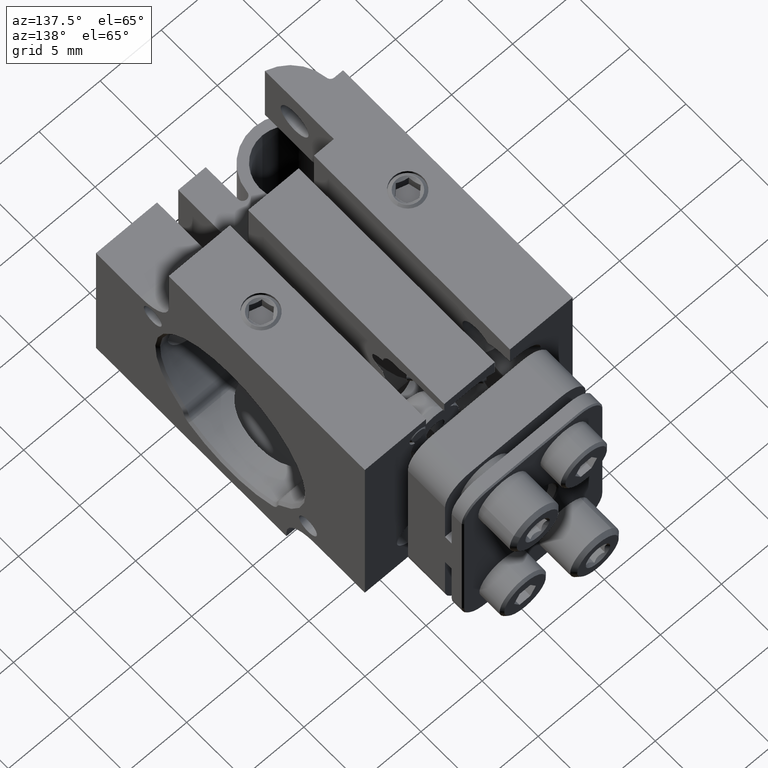
[diagram: clean part render]
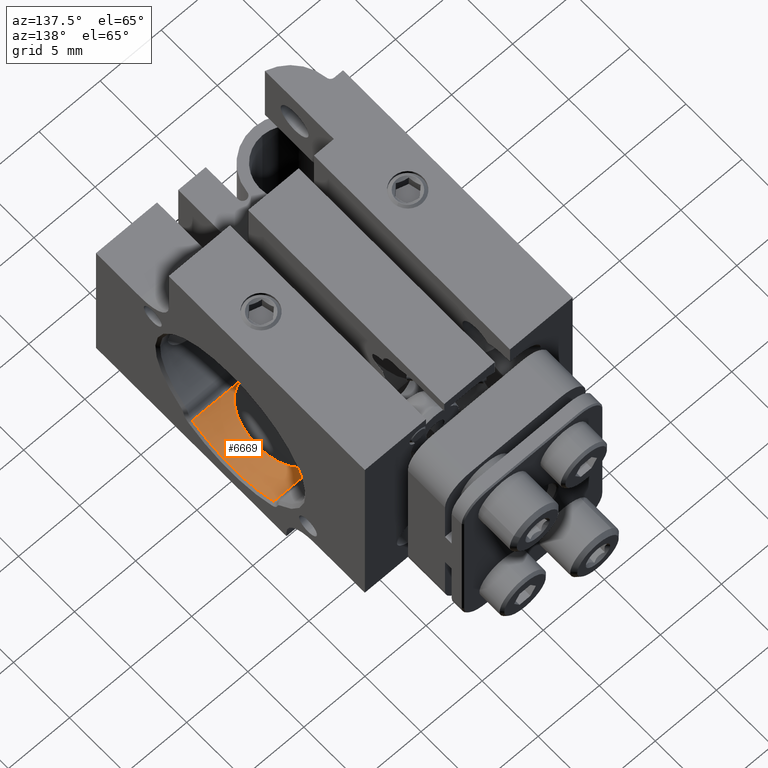
[diagram: same view with one face highlighted and labeled with its STEP entity id]
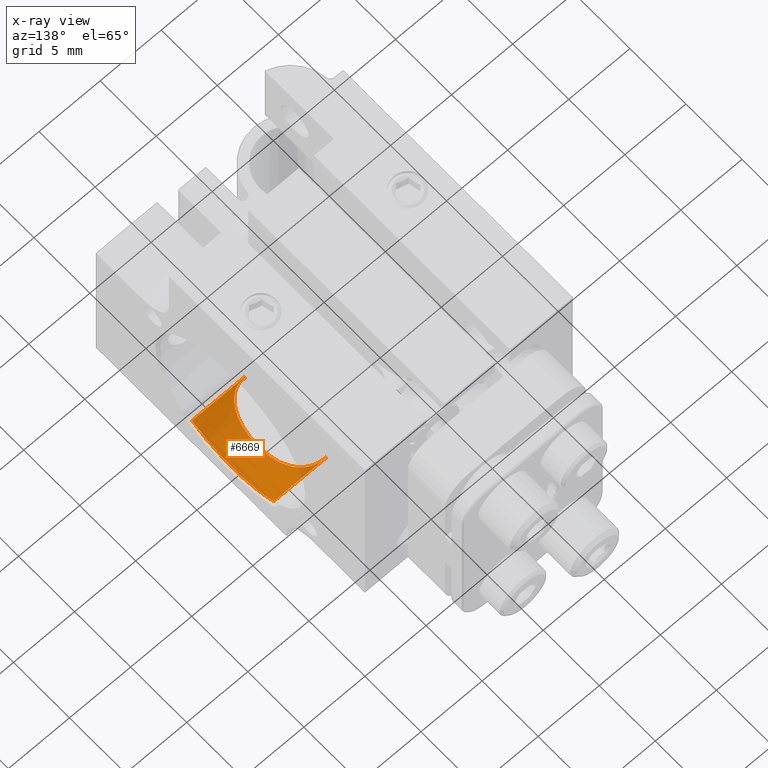
[diagram: x-ray of the same camera — body ghosted, the highlighted face saturated]
A machine part, auxiliary view. The second image highlights one B-rep face of the part: STEP entity #6669.
The next image is the same camera in x-ray: the body ghosted, the highlighted face saturated — about 3% of this face is hidden behind the body in this view.
In plain terms, the highlighted cylindrical surface (partial cylindrical patch) has radius 7 mm, axis along (1, 0, 0).
Its self-contained STEP definition (entity closure, byte-faithful):
#293 = LINE ( 'NONE', #10823, #7686 ) ;
#296 = AXIS2_PLACEMENT_3D ( 'NONE', #6284, #9837, #4664 ) ;
#485 = CARTESIAN_POINT ( 'NONE',  ( 4.298864619517659413, 14.96333366176993884, 14.68764634029930605 ) ) ;
#543 = CARTESIAN_POINT ( 'NONE',  ( 6.168995432464522644, 12.13565653771196473, 13.72825625527658744 ) ) ;
#583 = CARTESIAN_POINT ( 'NONE',  ( 4.066265259046022429, 14.95886073138530392, 14.68495176566820071 ) ) ;
#590 = CARTESIAN_POINT ( 'NONE',  ( 4.200000000000000178, 7.752231110841958817, 14.68764634029930782 ) ) ;
#1099 = CARTESIAN_POINT ( 'NONE',  ( 4.000000000000000000, 14.99778238630594451, 14.70848251916177496 ) ) ;
#1344 = CARTESIAN_POINT ( 'NONE',  ( 4.593877852237489456, 7.792295978382683508, 14.66317024353241827 ) ) ;
#1398 = CARTESIAN_POINT ( 'NONE',  ( 5.701758326551651379, 13.96702572738242942, 14.18990059736128018 ) ) ;
#1454 = CARTESIAN_POINT ( 'NONE',  ( 4.396026887998080390, 7.752231110841962369, 14.68764634029931315 ) ) ;
#1502 = CARTESIAN_POINT ( 'NONE',  ( 5.179822571736103498, 8.105043646061282914, 14.48888982728052355 ) ) ;
#1637 = CARTESIAN_POINT ( 'NONE',  ( 8.299999999999995381, 7.717782386305946929, 14.70848251916177496 ) ) ;
#1670 = CARTESIAN_POINT ( 'NONE',  ( 4.000000000000000000, 7.717782386305946929, 14.70848251916177496 ) ) ;
#1816 = DIRECTION ( 'NONE',  ( 0.000000000000000000, 0.000000000000000000, 1.000000000000000000 ) ) ;
#1918 = ORIENTED_EDGE ( 'NONE', *, *, #9743, .T. ) ;
#2096 = ORIENTED_EDGE ( 'NONE', *, *, #4969, .F. ) ;
#2310 = CARTESIAN_POINT ( 'NONE',  ( 5.105940582391193416, 8.048043356943477278, 14.51925825523877833 ) ) ;
#2316 = VERTEX_POINT ( 'NONE', #7781 ) ;
#2359 = CARTESIAN_POINT ( 'NONE',  ( 8.299999999999995381, 14.99778238630594451, 14.70848251916177496 ) ) ;
#2374 = CARTESIAN_POINT ( 'NONE',  ( 5.782571854024620706, 13.80055432041646313, 14.12509433830392780 ) ) ;
#2481 = EDGE_CURVE ( 'NONE', #2316, #8775, #8314, .T. ) ;
#2640 = EDGE_CURVE ( 'NONE', #7076, #9688, #4854, .T. ) ;
#3121 = CARTESIAN_POINT ( 'NONE',  ( 6.194044146681343399, 11.74612611647784810, 13.69569470301130920 ) ) ;
#3280 = CARTESIAN_POINT ( 'NONE',  ( 4.000000000000000000, 14.94996580323807400, 14.67963349917473437 ) ) ;
#3333 = AXIS2_PLACEMENT_3D ( 'NONE', #9707, #5387, #1816 ) ;
#3352 = EDGE_CURVE ( 'NONE', #2316, #6843, #4559, .T. ) ;
#3472 = DIRECTION ( 'NONE',  ( 0.000000000000000000, 0.000000000000000000, 1.000000000000000000 ) ) ;
#3874 = CARTESIAN_POINT ( 'NONE',  ( 5.386750372428732447, 8.291802764761243338, 14.39325713719170530 ) ) ;
#3884 = CARTESIAN_POINT ( 'NONE',  ( 4.000000000000000000, 7.765598969373820104, 14.67963349917473082 ) ) ;
#3933 = FACE_OUTER_BOUND ( 'NONE', #8284, .T. ) ;
#3935 = CARTESIAN_POINT ( 'NONE',  ( 4.860582799859425762, 7.901097385886569846, 14.60052220822544555 ) ) ;
#3993 = CARTESIAN_POINT ( 'NONE',  ( 6.169069043045330325, 10.58097876817601879, 13.72816086493054755 ) ) ;
#3999 = VERTEX_POINT ( 'NONE', #1637 ) ;
#4004 = CARTESIAN_POINT ( 'NONE',  ( 4.133523117355340837, 7.752231110841957928, 14.68764634029930782 ) ) ;
#4043 = CARTESIAN_POINT ( 'NONE',  ( 6.149783441593153377, 12.33100705593064461, 13.75292543589582372 ) ) ;
#4235 = CARTESIAN_POINT ( 'NONE',  ( 4.200000000000000178, 7.752231110841958817, 14.68764634029930782 ) ) ;
#4251 = CARTESIAN_POINT ( 'NONE',  ( 4.199999999999991296, 14.96333366176994595, 14.68764634029930960 ) ) ;
#4391 = CARTESIAN_POINT ( 'NONE',  ( 4.000000000000000000, 11.35778238630594572, 20.68764634029930960 ) ) ;
#4511 = ORIENTED_EDGE ( 'NONE', *, *, #5153, .T. ) ;
#4559 = CIRCLE ( 'NONE', #10422, 7.000000000000002665 ) ;
#4664 = DIRECTION ( 'NONE',  ( 0.000000000000000000, 0.000000000000000000, 1.000000000000000000 ) ) ;
#4797 = DIRECTION ( 'NONE',  ( 1.000000000000000000, 0.000000000000000000, 0.000000000000000000 ) ) ;
#4799 = CARTESIAN_POINT ( 'NONE',  ( 6.069399160933615534, 9.810535012676931288, 13.84969898978983061 ) ) ;
#4854 = LINE ( 'NONE', #8380, #11033 ) ;
#4855 = CARTESIAN_POINT ( 'NONE',  ( 4.946410921822603335, 7.945984984601873968, 14.57511638126211118 ) ) ;
#4969 = EDGE_CURVE ( 'NONE', #9567, #8485, #11151, .T. ) ;
#5153 = EDGE_CURVE ( 'NONE', #6843, #3999, #293, .T. ) ;
#5197 = CIRCLE ( 'NONE', #3333, 7.000000000000002665 ) ;
#5347 = ORIENTED_EDGE ( 'NONE', *, *, #3352, .T. ) ;
#5387 = DIRECTION ( 'NONE',  ( -1.000000000000000000, -0.000000000000000000, -0.000000000000000000 ) ) ;
#5556 = CARTESIAN_POINT ( 'NONE',  ( 4.200000000000000178, 7.752231110841958817, 14.68764634029930782 ) ) ;
#5559 = AXIS2_PLACEMENT_3D ( 'NONE', #8219, #4797, #6606 ) ;
#5842 = CARTESIAN_POINT ( 'NONE',  ( 5.783199146134107238, 8.916409033542574747, 14.12457612955899755 ) ) ;
#5892 = CARTESIAN_POINT ( 'NONE',  ( 4.396082384887643357, 14.95366284936543622, 14.68180522437471858 ) ) ;
#6128 = ORIENTED_EDGE ( 'NONE', *, *, #6181, .T. ) ;
#6181 = EDGE_CURVE ( 'NONE', #9688, #8485, #5197, .T. ) ;
#6284 = CARTESIAN_POINT ( 'NONE',  ( 8.299999999999995381, 11.35778238630594572, 20.68764634029930960 ) ) ;
#6476 = B_SPLINE_CURVE_WITH_KNOTS ( 'NONE', 3,
 ( #590, #1454, #1344, #3935, #4855, #2310, #1502, #3874, #10196, #7402, #5842, #11014, #4799, #9399, #3993, #10088, #10255, #7625, #3121, #543, #4043, #9287, #6658, #2374, #1398, #10893, #8381, #8329, #6547, #9227, #8435, #5892, #485, #10953 ),
 .UNSPECIFIED., .F., .F.,
 ( 4, 2, 2, 2, 2, 2, 2, 2, 2, 2, 2, 2, 2, 2, 2, 2, 4 ),
 ( 0.0001992977081825666249, 0.0007869863597248973747, 0.001080830685496063414, 0.001374675011267229453, 0.001962363662809558495, 0.002550052314351886670, 0.003725429617436543453, 0.004313118268978869893, 0.004900806920521196333, 0.005488495572063522773, 0.006076184223605849213, 0.007251561526690502094, 0.007839250178232826799, 0.008426938829775153239, 0.009014627481317479679, 0.009308471807088642899, 0.009602316132859806119 ),
 .UNSPECIFIED. ) ;
#6547 = CARTESIAN_POINT ( 'NONE',  ( 4.949322931190773822, 14.77832382276854872, 14.57970810442976628 ) ) ;
#6606 = DIRECTION ( 'NONE',  ( 0.000000000000000000, 0.000000000000000000, 1.000000000000000000 ) ) ;
#6658 = CARTESIAN_POINT ( 'NONE',  ( 5.987068773621150086, 13.27549743229762136, 13.94529786174501851 ) ) ;
#6669 = ADVANCED_FACE ( 'NONE', ( #3933 ), #9172, .F. ) ;
#6843 = VERTEX_POINT ( 'NONE', #1670 ) ;
#6930 = CARTESIAN_POINT ( 'NONE',  ( 4.133485842862869575, 14.96333366176993529, 14.68764634029930782 ) ) ;
#7076 = VERTEX_POINT ( 'NONE', #2359 ) ;
#7402 = CARTESIAN_POINT ( 'NONE',  ( 5.701713778946432498, 8.748588318896947769, 14.18989964786519842 ) ) ;
#7625 = CARTESIAN_POINT ( 'NONE',  ( 6.200011123343066366, 11.55158144220680150, 13.68763150917553872 ) ) ;
#7651 = CIRCLE ( 'NONE', #296, 7.000000000000002665 ) ;
#7686 = VECTOR ( 'NONE', #8316, 1000.000000000000000 ) ;
#7781 = CARTESIAN_POINT ( 'NONE',  ( 4.000000000000000000, 7.765598969373820104, 14.67963349917473082 ) ) ;
#7878 = DIRECTION ( 'NONE',  ( -1.000000000000000000, -0.000000000000000000, -0.000000000000000000 ) ) ;
#8219 = CARTESIAN_POINT ( 'NONE',  ( -4.217137253221634019, 11.35778238630594572, 20.68764634029930960 ) ) ;
#8228 = ORIENTED_EDGE ( 'NONE', *, *, #11066, .F. ) ;
#8284 = EDGE_LOOP ( 'NONE', ( #4511, #1918, #10236, #6128, #2096, #8228, #11242, #5347 ) ) ;
#8314 = B_SPLINE_CURVE_WITH_KNOTS ( 'NONE', 3,
 ( #3884, #9929, #4004, #5556 ),
 .UNSPECIFIED., .F., .F.,
 ( 4, 4 ),
 ( 0.000000000000000000, 0.0001992977081825666249 ),
 .UNSPECIFIED. ) ;
#8316 = DIRECTION ( 'NONE',  ( 1.000000000000000000, 0.000000000000000000, 0.000000000000000000 ) ) ;
#8329 = CARTESIAN_POINT ( 'NONE',  ( 5.110547955325970726, 14.67295540190407976, 14.52087085439195313 ) ) ;
#8380 = CARTESIAN_POINT ( 'NONE',  ( -4.217137253221634019, 14.99778238630594451, 14.70848251916177496 ) ) ;
#8381 = CARTESIAN_POINT ( 'NONE',  ( 5.386112044242591601, 14.42442615532036854, 14.39358660028230119 ) ) ;
#8435 = CARTESIAN_POINT ( 'NONE',  ( 4.587398965234344317, 14.91584845281525595, 14.65932570510593713 ) ) ;
#8485 = VERTEX_POINT ( 'NONE', #10575 ) ;
#8775 = VERTEX_POINT ( 'NONE', #4235 ) ;
#9172 = CYLINDRICAL_SURFACE ( 'NONE', #5559, 7.000000000000002665 ) ;
#9227 = CARTESIAN_POINT ( 'NONE',  ( 4.682264253383009667, 14.88718291489408685, 14.64239322634780116 ) ) ;
#9287 = CARTESIAN_POINT ( 'NONE',  ( 6.069495561105514803, 12.90401806244200245, 13.84957377911724308 ) ) ;
#9399 = CARTESIAN_POINT ( 'NONE',  ( 6.149998712950912605, 10.38625644918402635, 13.75266170049044945 ) ) ;
#9567 = VERTEX_POINT ( 'NONE', #4251 ) ;
#9688 = VERTEX_POINT ( 'NONE', #1099 ) ;
#9707 = CARTESIAN_POINT ( 'NONE',  ( 4.000000000000000000, 11.35778238630594572, 20.68764634029930960 ) ) ;
#9743 = EDGE_CURVE ( 'NONE', #3999, #7076, #7651, .T. ) ;
#9837 = DIRECTION ( 'NONE',  ( 1.000000000000000000, 0.000000000000000000, 0.000000000000000000 ) ) ;
#9929 = CARTESIAN_POINT ( 'NONE',  ( 4.066858867439405500, 7.756624359896088450, 14.68499940703675755 ) ) ;
#10088 = CARTESIAN_POINT ( 'NONE',  ( 6.193997665411626663, 10.96879008922024035, 13.69575482685200818 ) ) ;
#10196 = CARTESIAN_POINT ( 'NONE',  ( 5.504729183843140916, 8.437822094337828815, 14.32349379233424180 ) ) ;
#10236 = ORIENTED_EDGE ( 'NONE', *, *, #2640, .T. ) ;
#10255 = CARTESIAN_POINT ( 'NONE',  ( 6.199988845994542253, 11.16291341007537774, 13.68766121230627952 ) ) ;
#10422 = AXIS2_PLACEMENT_3D ( 'NONE', #4391, #7878, #3472 ) ;
#10575 = CARTESIAN_POINT ( 'NONE',  ( 4.000000000000000000, 14.94996580323807400, 14.67963349917473437 ) ) ;
#10823 = CARTESIAN_POINT ( 'NONE',  ( -4.217137253221634019, 7.717782386305946929, 14.70848251916177496 ) ) ;
#10893 = CARTESIAN_POINT ( 'NONE',  ( 5.503790108332763609, 14.27910408541107579, 14.32409936686077145 ) ) ;
#10952 = DIRECTION ( 'NONE',  ( -1.000000000000000000, -0.000000000000000000, -0.000000000000000000 ) ) ;
#10953 = CARTESIAN_POINT ( 'NONE',  ( 4.199999999999991296, 14.96333366176994595, 14.68764634029930960 ) ) ;
#11014 = CARTESIAN_POINT ( 'NONE',  ( 5.987374652878502346, 9.441279191002376336, 13.94496191515000305 ) ) ;
#11033 = VECTOR ( 'NONE', #10952, 1000.000000000000000 ) ;
#11066 = EDGE_CURVE ( 'NONE', #8775, #9567, #6476, .T. ) ;
#11151 = B_SPLINE_CURVE_WITH_KNOTS ( 'NONE', 3,
 ( #11163, #6930, #583, #3280 ),
 .UNSPECIFIED., .F., .F.,
 ( 4, 4 ),
 ( 0.009602316132859806119, 0.009800008773093976666 ),
 .UNSPECIFIED. ) ;
#11163 = CARTESIAN_POINT ( 'NONE',  ( 4.199999999999991296, 14.96333366176994595, 14.68764634029930960 ) ) ;
#11242 = ORIENTED_EDGE ( 'NONE', *, *, #2481, .F. ) ;